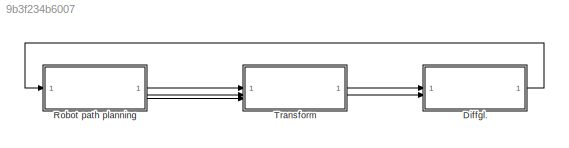
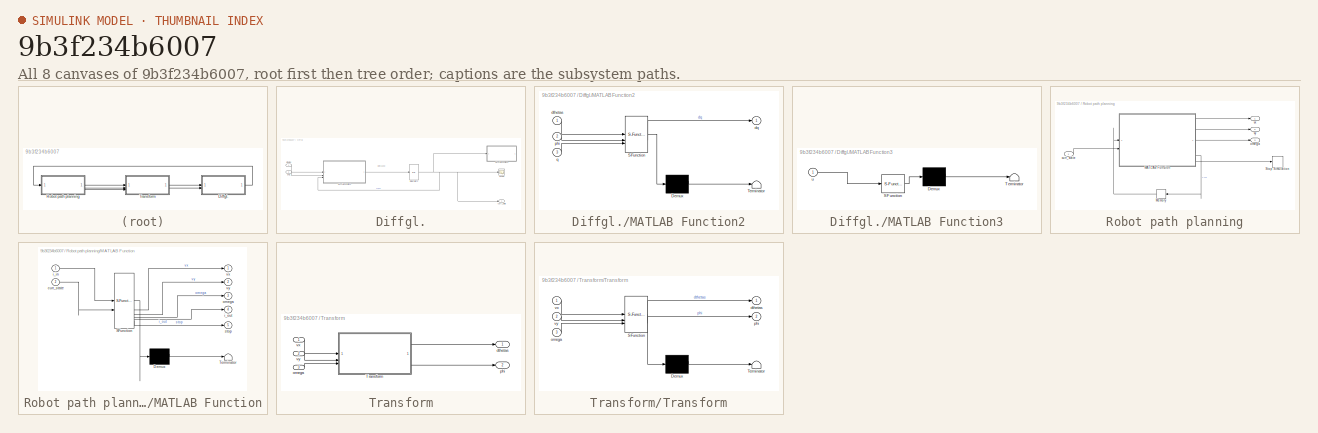
[diagram: thumbnail index - all 8 canvases of the model, root first then tree order]
MODEL slx_9b3f234b6007
KIND model
CONFIG AbsTol = auto
CONFIG EnableMultiTasking = off
CONFIG FixedStep = auto
CONFIG MaxStep = 1e-1
CONFIG MinStep = auto
CONFIG RelTol = 1e-3
CONFIG SampleTimeConstraint = Unconstrained
CONFIG SolverName = VariableStepAuto
CONFIG StartTime = 0.0
CONFIG StopTime = 500
BLOCK [SubSystem] Diffgl.
BLOCK [Integrator] Diffgl./Integrator2
  InitialCondition = (q0) - [0.5;0.5;0]
BLOCK [SubSystem] Diffgl./MATLAB Function2
  ErrorFcn = Stateflow.Translate.translate
  PermitHierarchicalResolution = ExplicitOnly
  SFBlockType = MATLAB Function
  TreatAsAtomicUnit = on
BLOCK [Demux] Diffgl./MATLAB Function2/ Demux 
  Outputs = 1
BLOCK [S-Function] Diffgl./MATLAB Function2/ SFunction 
  EnableBusSupport = on
  FunctionName = sf_sfun
  Parameters = b,r
  PortCounts = [3 2]
  SFcnIsStateOwnerBlock = off
  SFunctionDeploymentMode = off
  Tag = Stateflow S-Function 5
BLOCK [Terminator] Diffgl./MATLAB Function2/ Terminator 
BLOCK [Outport] Diffgl./MATLAB Function2/dq
BLOCK [Inport] Diffgl./MATLAB Function2/dthetas
BLOCK [Inport] Diffgl./MATLAB Function2/phi
  Port = 2
BLOCK [Inport] Diffgl./MATLAB Function2/q
  Port = 3
BLOCK [SubSystem] Diffgl./MATLAB Function3
  ErrorFcn = Stateflow.Translate.translate
  PermitHierarchicalResolution = ExplicitOnly
  SFBlockType = MATLAB Function
  TreatAsAtomicUnit = on
BLOCK [Demux] Diffgl./MATLAB Function3/ Demux 
  Outputs = 1
BLOCK [S-Function] Diffgl./MATLAB Function3/ SFunction 
  EnableBusSupport = on
  FunctionName = sf_sfun
  Parameters = X_value_obs,Y_value_obs,b,cellSize,end_pos,h,l,r,r_obs,result_path,start_pos,w,xlim_end,ylim_end
  PortCounts = [1 1]
  SFcnIsStateOwnerBlock = off
  SFunctionDeploymentMode = off
  Tag = Stateflow S-Function 6
BLOCK [Terminator] Diffgl./MATLAB Function3/ Terminator 
BLOCK [Inport] Diffgl./MATLAB Function3/u
BLOCK [Scope] Diffgl./Scope
  Floating = off
  NumInputPorts = 1
  ScopeSpecificationString = Simulink.scopes.TimeScopeBlockCfg('CurrentConfiguration', extmgr.ConfigurationSet(extmgr.Configuration('Core','General UI',true),extmgr.Configuration('Core','Source UI',true),extmgr.Configuration('Sources','WiredSimulink',true),extmgr.Configuration('Visuals','Time Domain',true,'SerializedDisplays',{struct('MinYLimReal','-1.24995','MaxYLimReal','11.24955','YLabelReal','','MinYLimMag','0.00000','Max...<+1432ch>
BLOCK [Outport] Diffgl./curr_state
  VarSizeSig = No
BLOCK [Inport] Diffgl./dthetas
  NameLocation = top
BLOCK [Inport] Diffgl./phi1
  Port = 2
BLOCK [SubSystem] Robot path planning
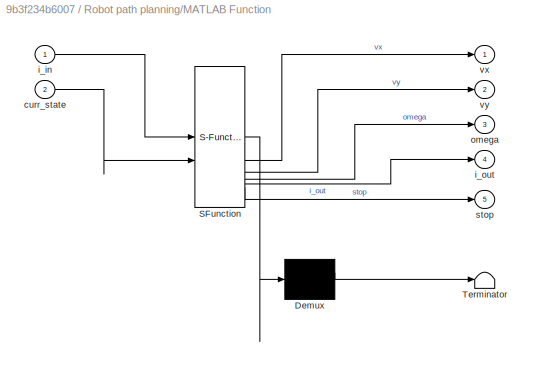
BLOCK [SubSystem] Robot path planning/MATLAB Function
  ErrorFcn = Stateflow.Translate.translate
  PermitHierarchicalResolution = ExplicitOnly
  SFBlockType = MATLAB Function
  TreatAsAtomicUnit = on
BLOCK [Demux] Robot path planning/MATLAB Function/ Demux 
  Outputs = 1
BLOCK [S-Function] Robot path planning/MATLAB Function/ SFunction 
  EnableBusSupport = on
  FunctionName = sf_sfun
  Parameters = cellSize,result_path
  PortCounts = [2 6]
  SFcnIsStateOwnerBlock = off
  SFunctionDeploymentMode = off
  Tag = Stateflow S-Function 2
BLOCK [Terminator] Robot path planning/MATLAB Function/ Terminator 
BLOCK [Inport] Robot path planning/MATLAB Function/curr_state
  Port = 2
BLOCK [Inport] Robot path planning/MATLAB Function/i_in
BLOCK [Outport] Robot path planning/MATLAB Function/i_out
  Port = 4
BLOCK [Outport] Robot path planning/MATLAB Function/omega
  Port = 3
BLOCK [Outport] Robot path planning/MATLAB Function/stop
  Port = 5
BLOCK [Outport] Robot path planning/MATLAB Function/vx
BLOCK [Outport] Robot path planning/MATLAB Function/vy
  Port = 2
BLOCK [Memory] Robot path planning/Memory
  InheritSampleTime = on
  InitialCondition = 1
  NameLocation = top
BLOCK [Stop] Robot path planning/Stop Simulation
BLOCK [Inport] Robot path planning/curr_state
BLOCK [Outport] Robot path planning/omega
  Port = 3
BLOCK [Outport] Robot path planning/vx
BLOCK [Outport] Robot path planning/vy
  Port = 2
BLOCK [SubSystem] Transform
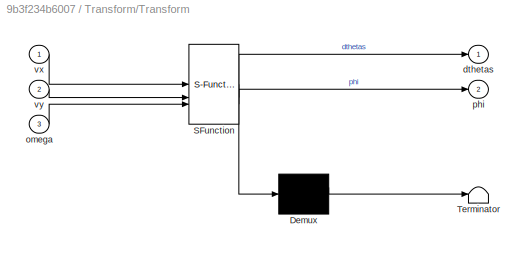
BLOCK [SubSystem] Transform/Transform
  ErrorFcn = Stateflow.Translate.translate
  PermitHierarchicalResolution = ExplicitOnly
  SFBlockType = MATLAB Function
  TreatAsAtomicUnit = on
BLOCK [Demux] Transform/Transform/ Demux 
  Outputs = 1
BLOCK [S-Function] Transform/Transform/ SFunction 
  EnableBusSupport = on
  FunctionName = sf_sfun
  Parameters = b,l,r
  PortCounts = [3 3]
  SFcnIsStateOwnerBlock = off
  SFunctionDeploymentMode = off
  Tag = Stateflow S-Function 1
BLOCK [Terminator] Transform/Transform/ Terminator 
BLOCK [Outport] Transform/Transform/dthetas
BLOCK [Inport] Transform/Transform/omega
  Port = 3
BLOCK [Outport] Transform/Transform/phi
  Port = 2
BLOCK [Inport] Transform/Transform/vx
BLOCK [Inport] Transform/Transform/vy
  Port = 2
BLOCK [Outport] Transform/dthetas
BLOCK [Inport] Transform/omega
  Port = 3
BLOCK [Outport] Transform/phi
  Port = 2
BLOCK [Inport] Transform/vx
BLOCK [Inport] Transform/vy
  Port = 2
ANNOTATION Diffgl.: d/dt (x,y,psi)
NET Diffgl./Integrator2:1 -> Diffgl./MATLAB Function2:3, Diffgl./MATLAB Function3:1, Diffgl./Scope:1, Diffgl./curr_state:1
LINE Diffgl./MATLAB Function2:1 -> Diffgl./Integrator2:1
LINE Diffgl./dthetas:1 -> Diffgl./MATLAB Function2:1
LINE Diffgl./phi1:1 -> Diffgl./MATLAB Function2:2
LINE Diffgl.:1 -> Robot path planning:1
LINE Robot path planning/MATLAB Function:1 -> Robot path planning/vx:1
LINE Robot path planning/MATLAB Function:2 -> Robot path planning/vy:1
LINE Robot path planning/MATLAB Function:3 -> Robot path planning/omega:1
LINE Robot path planning/MATLAB Function:4 -> Robot path planning/Memory:1
LINE Robot path planning/MATLAB Function:5 -> Robot path planning/Stop Simulation:1
LINE Robot path planning/Memory:1 -> Robot path planning/MATLAB Function:1
LINE Robot path planning/curr_state:1 -> Robot path planning/MATLAB Function:2
LINE Robot path planning:1 -> Transform:1
LINE Robot path planning:2 -> Transform:2
LINE Robot path planning:3 -> Transform:3
LINE Transform/Transform:1 -> Transform/dthetas:1
LINE Transform/Transform:2 -> Transform/phi:1
LINE Transform/omega:1 -> Transform/Transform:3
LINE Transform/vx:1 -> Transform/Transform:1
LINE Transform/vy:1 -> Transform/Transform:2
LINE Transform:1 -> Diffgl.:1
LINE Transform:2 -> Diffgl.:2
note: NET lines group one-source signal fan-out (src -> all destinations, sorted); 1:1 wires keep LINE
CHART Transform/Transform states=1 transitions=1
  STATE_LABEL 'eML_blk_kernel()'
  STATE_LABEL 'SCRIPT:\nfunction [dthetas, phi] = fcn(vx,vy,omega, b, r, l)\n\nvel = [vx, vy, omega];\n\n\ndtheta1 = (1/r)*sqrt((vel(1) + 0.5*vel(3)*b)^2 + (vel(2)+ 0.5*vel(3)*l)^2);\ndtheta2 = (1/r)*sqrt((vel(1) - 0.5*vel(3)*b)^2 + (vel(2)+ 0.5*vel(3)*l)^2);\ndtheta3 = (1/r)*sqrt((vel(1) - 0.5*vel(3)*b)^2 + (vel(2) - 0.5*vel(3)*l)^2);\ndtheta4 = (1/r)*sqrt((vel(1) + 0.5*vel(3)*b)^2 + (vel(2) - 0.5*vel(3)*l)^2);\n    \nphi...<+351ch>'
CHART Robot path planning/MATLAB Function states=1 transitions=1
  STATE_LABEL 'eML_blk_kernel()'
  STATE_LABEL 'SCRIPT:\nfunction [vx, vy, omega, i_out, stop] = P_Regler_Debug(result_path, i_in, curr_state, cellSize)\n  %#codegen\n  % 1) Inputs\n\n  Res = result_path*cellSize;\n  x   = curr_state(1);\n  y   = curr_state(2);\n  psi = curr_state(3);          % Heading hinzugefügt\n  N   = size(Res,1);\n  stop = 0;\n\n  \n  % 2) Parameter\n  Kp = 10.0;                    % bei cellSize=0.25 → Kp_v=4.4\n  Kp_omega = 3.0 ;    ...<+1445ch>'
CHART Diffgl./MATLAB Function2 states=1 transitions=1
  STATE_LABEL 'eML_blk_kernel()'
  STATE_LABEL 'SCRIPT:\nfunction dq = fcn(dthetas, phi, q, r, b)\n\npsi = q(3); \n\ndq = zeros(3,1);\n\n% Rotationsmatrix\nRz = [cos(psi) -sin(psi) 0;\n    sin(psi) cos(psi) 0;\n    0 0 1];\n\n% Lokale Geschwindigkeiten\nvx = (r/4) * (dthetas(1)*cos(phi(1)) + dthetas(2)*cos(phi(2)) + ...\n                        dthetas(3)*cos(phi(3)) + dthetas(4)*cos(phi(4))); \n\nvy = (r/4) * (dthetas(1)*sin(phi(1)) + dthetas(2)*sin(phi(2)) +...<+289ch>'
CHART Diffgl./MATLAB Function3 states=1 transitions=1
  STATE_LABEL 'eML_blk_kernel()'
  STATE_LABEL "SCRIPT:\nfunction plot_vehicle(u, result_path, cellSize, r_obs, Y_value_obs, X_value_obs, ylim_end, xlim_end, end_pos, start_pos, l, b, h, r, w)\n    %#codegen\n    coder.extrinsic('figure','hold','grid','axis','title', ...\n                   'fct_plotvehicle','fct_plotobstacle','fct_markCircularObstacle','fct_plot_start_end', ...\n                   'findobj','delete','plot','subplot','rectangle','cl...<+2273ch>"
CHART  states=0 transitions=0
CHART  states=0 transitions=0
CHART  states=0 transitions=0
CHART  states=0 transitions=0
